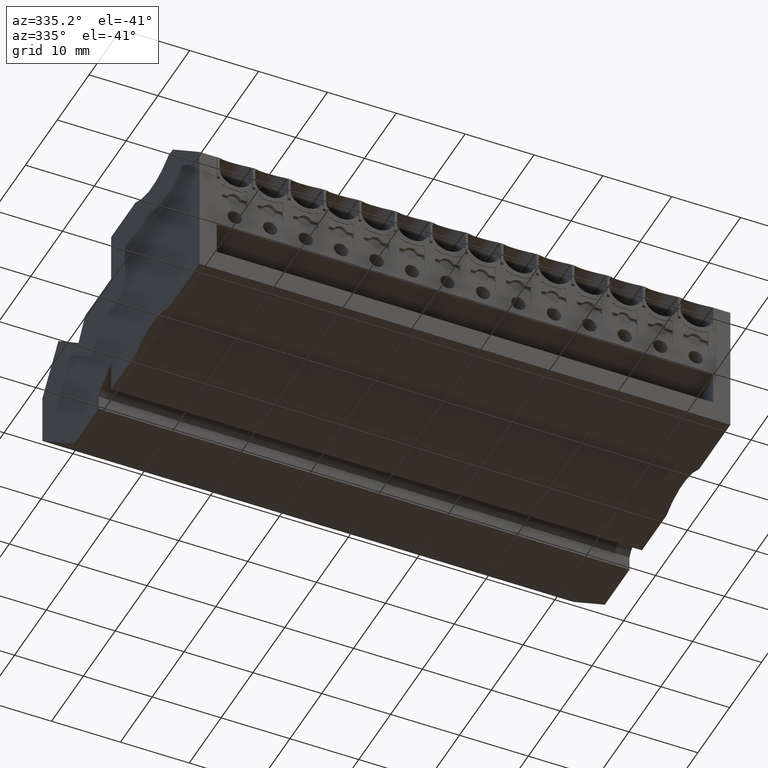
[diagram: clean part render]
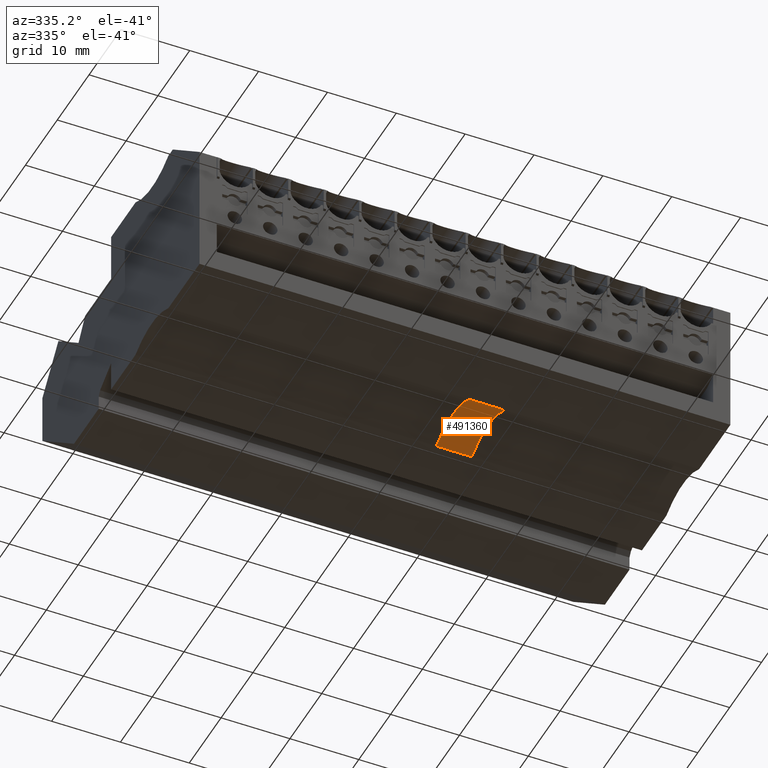
[diagram: same view with one face highlighted and labeled with its STEP entity id]
A machine part, auxiliary view. The second image highlights one B-rep face of the part: STEP entity #491360.
In plain terms, the highlighted cylindrical surface (partial cylindrical patch) has radius 10 mm, axis along (-1, -0, 0).
Its self-contained STEP definition (entity closure, byte-faithful):
#183310=CARTESIAN_POINT('',(440.590572493105,670.934347727425,
284.419999991964));
#183320=DIRECTION('',(-1.66699262872186E-10,-4.90742678260922E-10,-1.));
#183330=VECTOR('',#183320,1.);
#183340=LINE('',#183310,#183330);
#183370=CARTESIAN_POINT('',(440.590572464775,670.934347644024,
114.469999999033));
#183380=VERTEX_POINT('',#183370);
#274560=CARTESIAN_POINT('',(430.260883772267,670.934347639395,
93.8699999926897));
#274570=DIRECTION('',(1.66699210889915E-10,4.90742846146349E-10,1.));
#274580=VECTOR('',#274570,1.);
#274590=LINE('',#274560,#274580);
#274600=CARTESIAN_POINT('',(430.260883759114,670.934347654869,
114.469999999493));
#274610=VERTEX_POINT('',#274600);
#304860=CARTESIAN_POINT('',(440.590572463916,670.934347641496,
109.319999999033));
#304870=VERTEX_POINT('',#304860);
#304880=EDGE_CURVE('',#183380,#304870,#183340,.T.);
#329980=CARTESIAN_POINT('',(435.425728112936,662.371381971997,
284.419999997027));
#329990=DIRECTION('',(-1.66699262872186E-10,-4.90742678260922E-10,-1.));
#330000=DIRECTION('',(1.,-1.20456367103123E-9,-1.66698994956591E-10));
#330010=AXIS2_PLACEMENT_3D('',#329980,#329990,#330000);
#330020=CYLINDRICAL_SURFACE('',#330010,10.);
#338250=CARTESIAN_POINT('',(435.425728084606,662.371381888596,
114.470000004097));
#338260=DIRECTION('',(1.66699262872186E-10,4.90742678260922E-10,1.));
#338270=DIRECTION('',(1.,-1.20456367103123E-9,-1.66698994956591E-10));
#338280=AXIS2_PLACEMENT_3D('',#338250,#338260,#338270);
#338290=CIRCLE('',#338280,10.);
#338300=EDGE_CURVE('',#183380,#274610,#338290,.T.);
#491210=CARTESIAN_POINT('',(430.26088376042,670.934347675781,
109.320000000755));
#491220=VERTEX_POINT('',#491210);
#491230=EDGE_CURVE('',#491220,#274610,#274590,.T.);
#491240=ORIENTED_EDGE('',*,*,#491230,.F.);
#491250=ORIENTED_EDGE('',*,*,#338300,.T.);
#491260=ORIENTED_EDGE('',*,*,#304880,.F.);
#491270=CARTESIAN_POINT('',(435.425728083747,662.371381886068,
109.320000004097));
#491280=DIRECTION('',(1.66699262872186E-10,4.90742678260922E-10,1.));
#491290=DIRECTION('',(1.,-1.20456367103123E-9,-1.66698994956591E-10));
#491300=AXIS2_PLACEMENT_3D('',#491270,#491280,#491290);
#491310=CIRCLE('',#491300,10.);
#491320=EDGE_CURVE('',#304870,#491220,#491310,.T.);
#491330=ORIENTED_EDGE('',*,*,#491320,.F.);
#491340=EDGE_LOOP('',(#491330,#491260,#491250,#491240));
#491350=FACE_OUTER_BOUND('',#491340,.T.);
#491360=ADVANCED_FACE('',(#491350),#330020,.F.);